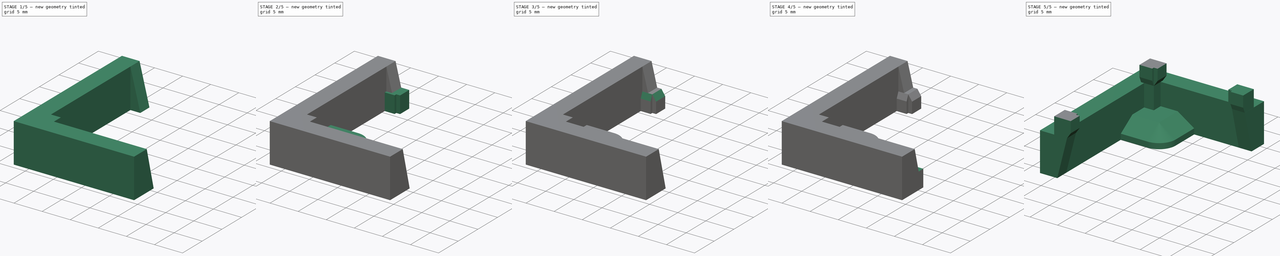
[diagram: build sequence overview — one tinted view per stage of 5, left to right]
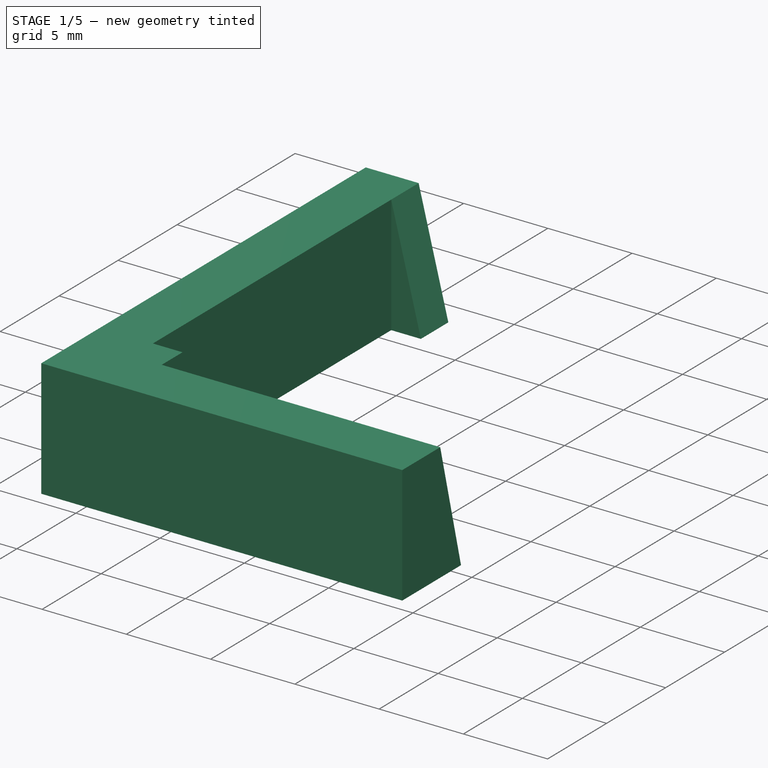
[diagram: stage 1 of 5 — iso view after this stage's code; geometry added in this stage tinted green]
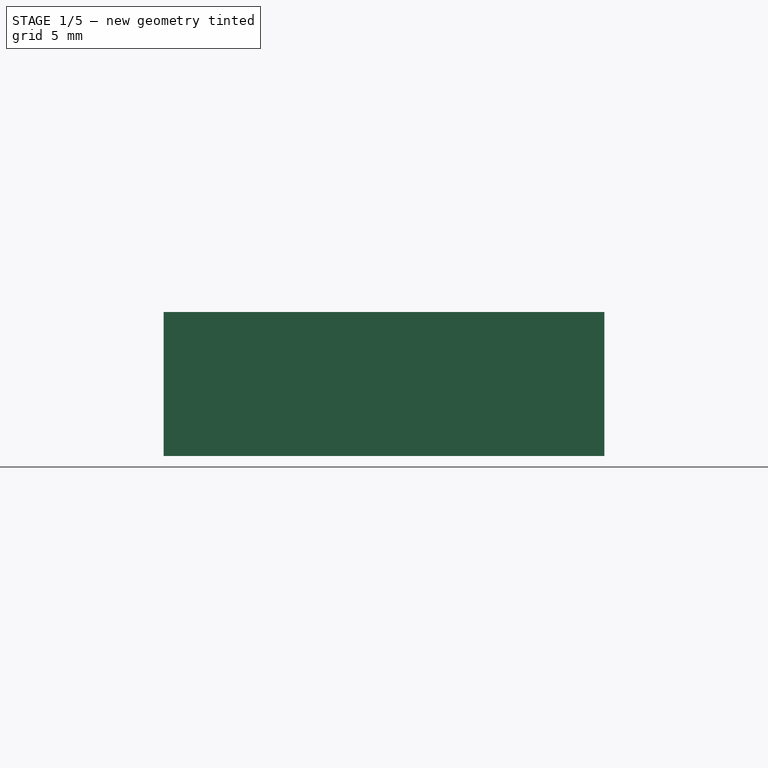
[diagram: stage 1 of 5 — front view after this stage's code; geometry added in this stage tinted green]
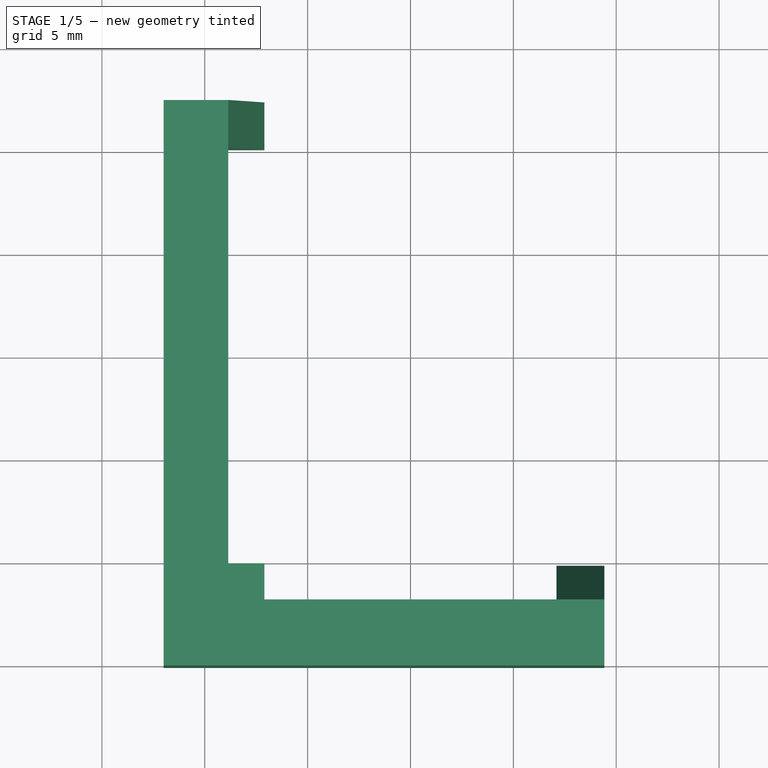
[diagram: stage 1 of 5 — top view after this stage's code; geometry added in this stage tinted green]
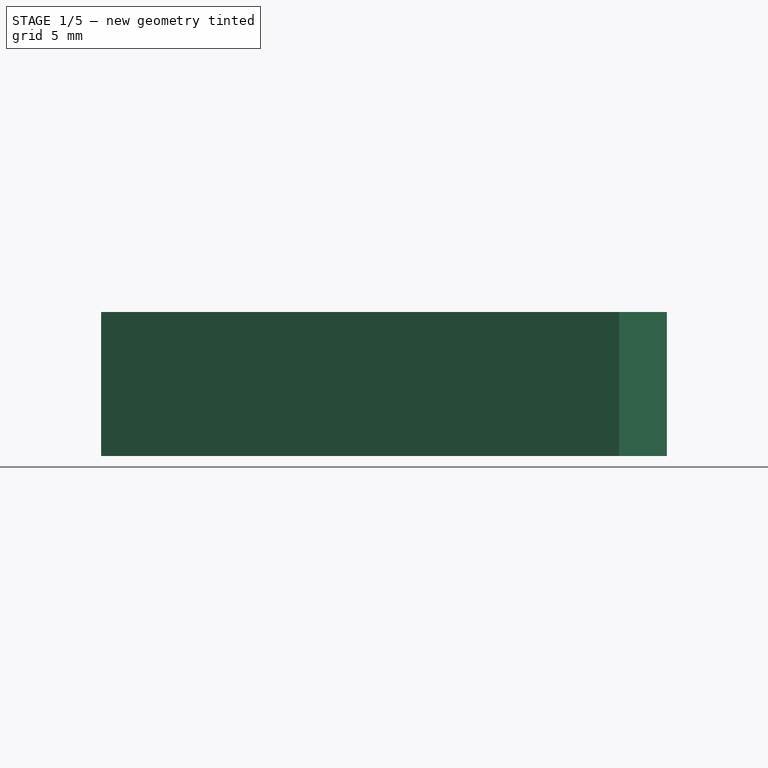
[diagram: stage 1 of 5 — right view after this stage's code; geometry added in this stage tinted green]
FCSTD DOCUMENT  (FreeCAD 1.0R39319 (Git))
Label: Alignment_Tool_v1.0
License: All rights reserved
LicenseURL: https://en.wikipedia.org/wiki/All_rights_reserved
objects: PartDesign::Chamfer×9, Sketcher::SketchObject×5, PartDesign::Pad×5, PartDesign::Body×5, Part::Feature×1, Part::MultiFuse×1
note: 59 computed .brp shape members not serialized (recipe doc carries the construction recipe); baked Part::Feature solids carry a one-line shape summary decoded from their .brp

FEATURE [Sketcher::SketchObject] Sketch003
  ArcFitTolerance = 1e-06
  AttachmentSupport = -> [XY_Plane003]
  FullyConstrained = true
  MakeInternals = false
  MapMode = 5
  sketch-geometry (12):
    g0: LineSegment StartX=-7.1 StartY=-11.86 StartZ=0 EndX=7.1 EndY=-11.86 EndZ=0
    g1: LineSegment StartX=7.1 StartY=-11.86 StartZ=0 EndX=7.1 EndY=-10.1 EndZ=0
    g2: LineSegment StartX=7.1 StartY=-10.1 StartZ=0 EndX=9.425 EndY=-10.1 EndZ=0
    g3: LineSegment StartX=9.425 StartY=-10.1 StartZ=0 EndX=9.425 EndY=-15.075 EndZ=0
    g4: LineSegment StartX=9.425 StartY=-15.075 StartZ=0 EndX=-12 EndY=-15.075 EndZ=0
    g5: LineSegment StartX=-12 StartY=-15.075 StartZ=0 EndX=-12 EndY=12.425 EndZ=0
    g6: LineSegment StartX=-12 StartY=12.425 StartZ=0 EndX=-7.1 EndY=12.425 EndZ=0
    g7: LineSegment StartX=-7.1 StartY=12.425 StartZ=0 EndX=-7.1 EndY=10.1 EndZ=0
    g8: LineSegment StartX=-7.1 StartY=10.1 StartZ=0 EndX=-8.86 EndY=10.1 EndZ=0
    g9: LineSegment StartX=-8.86 StartY=10.1 StartZ=0 EndX=-8.86 EndY=-10.1 EndZ=0
    g10: LineSegment StartX=-8.86 StartY=-10.1 StartZ=0 EndX=-7.1 EndY=-10.1 EndZ=0
    g11: LineSegment StartX=-7.1 StartY=-10.1 StartZ=0 EndX=-7.1 EndY=-11.86 EndZ=0
  constraints (36):
    c: Horizontal(g0)
    c: Coincident(g0,g1)
    c: Coincident(g1,g2)
    c: Coincident(g2,g3)
    c: Vertical(g3)
    c: Coincident(g3,g4)
    c: Coincident(g4,g5)
    c: Vertical(g5)
    c: Coincident(g5,g6)
    c: Horizontal(g6)
    c: DistanceX(g5,g-1) = 12
    c: DistanceY(g-1,g6) = 12.425
    c: DistanceY(g5,g5) = 27.5
    c: Vertical(g1)
    c: Horizontal(g2)
    c: DistanceY(g1) = -10.1
    c: DistanceX(g-1,g1) = 7.1
    c: Distance(g1,g1) = 1.76
    c: Coincident(g7,g8)
    c: Coincident(g8,g9)
    c: Vertical(g9)
    c: Coincident(g9,g10)
    c: Coincident(g10,g11)
    c: Horizontal(g8)
    c: Vertical(g7)
    c: Vertical(g11)
    c: Horizontal(g10)
    c: Horizontal(g10,g1)
    c: DistanceX(g7) = -7.1
    c: DistanceX(g8,g-1) = 8.86
    c: Coincident(g6,g7)
    c: Vertical(g7,g10)
    c: Coincident(g11,g0)
    c: Horizontal(g4)
    c: DistanceY(g-1,g7) = 10.1
    c: DistanceX(g-1,g2) = 9.425
FEATURE [PartDesign::Pad] Pad003
  Direction = (0,0,1)
  Length = 7
  Length2 = 10
  Profile = -> Sketch003
  ReferenceAxis = -> Sketch003 [N_Axis]
  Refine = true
  Suppressed = false
  Type = 0
FEATURE [PartDesign::Body] Body004  label="Thumb"
  AllowCompound = false
  Group = -> [Sketch004,Pad004,Chamfer006]
  Origin = -> Origin004
  Placement = pos=(0,0,7) rot=(0,0,1;0rad)
  Tip = -> Chamfer006
FEATURE [PartDesign::Chamfer] Chamfer007
  Angle = 45
  Base = -> Pad003 [Edge10]
  BaseFeature = -> Pad003
  ChamferType = 1
  FlipDirection = false
  Refine = true
  Size = 6.99
  Size2 = 1.76
  SupportTransform = false
  Suppressed = false
  UseAllEdges = false
FEATURE [PartDesign::Chamfer] Chamfer008
  Angle = 45
  Base = -> Chamfer007 [Edge29]
  BaseFeature = -> Chamfer007
  ChamferType = 1
  FlipDirection = false
  Refine = true
  Size = 1.76
  Size2 = 6.99
  SupportTransform = false
  Suppressed = false
  UseAllEdges = false
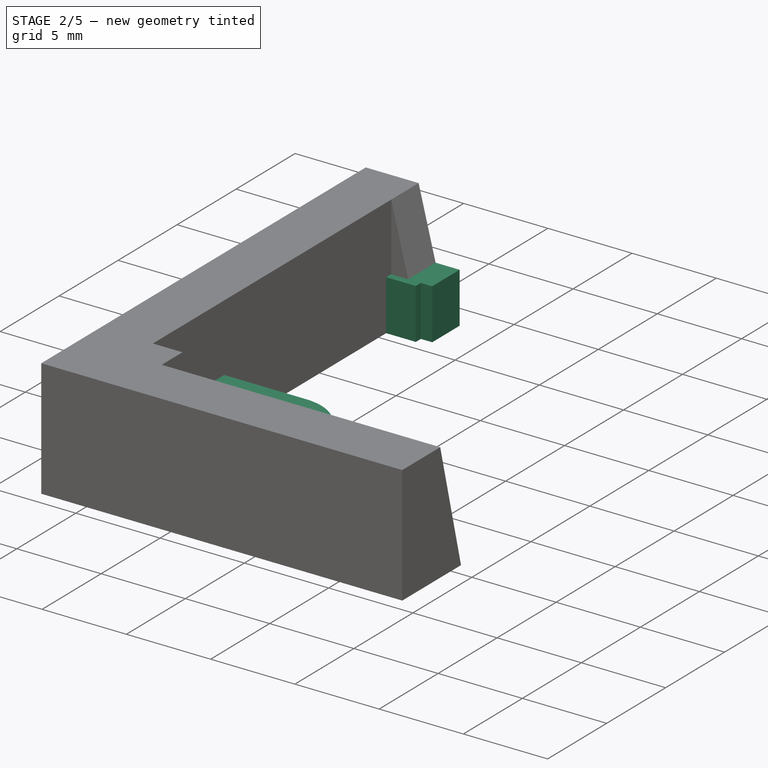
[diagram: stage 2 of 5 — iso view after this stage's code; geometry added in this stage tinted green]
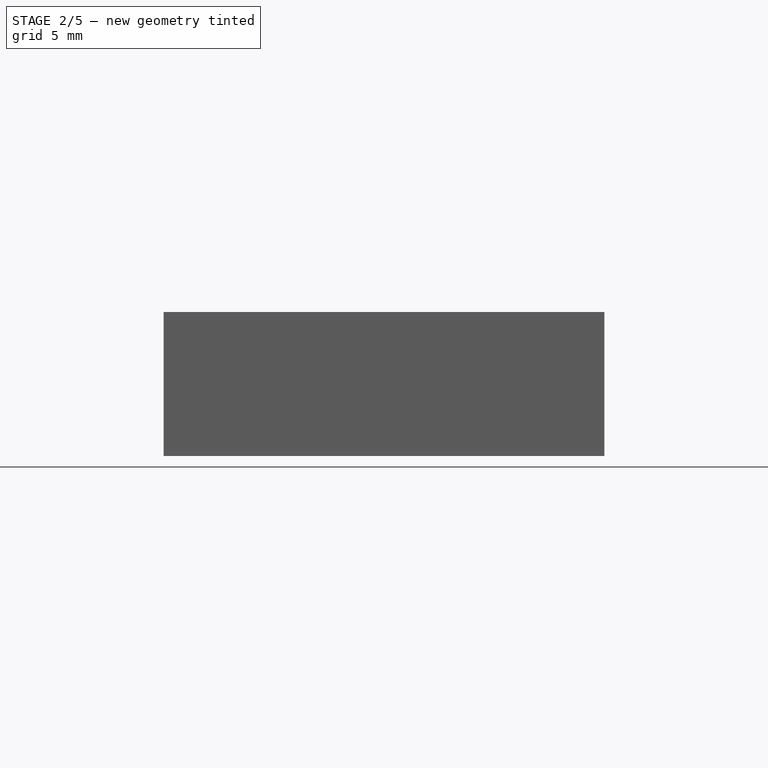
[diagram: stage 2 of 5 — front view after this stage's code; geometry added in this stage tinted green]
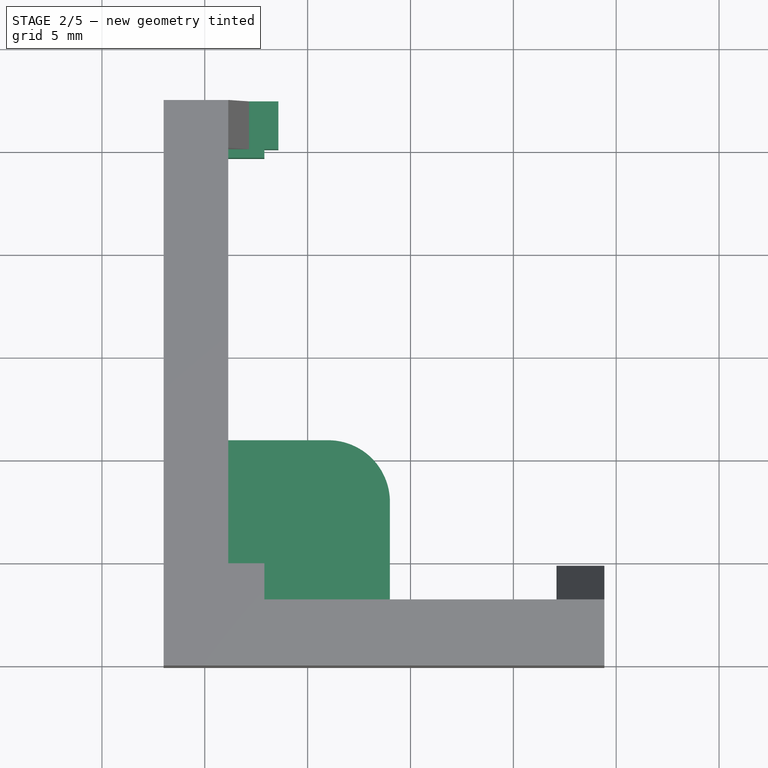
[diagram: stage 2 of 5 — top view after this stage's code; geometry added in this stage tinted green]
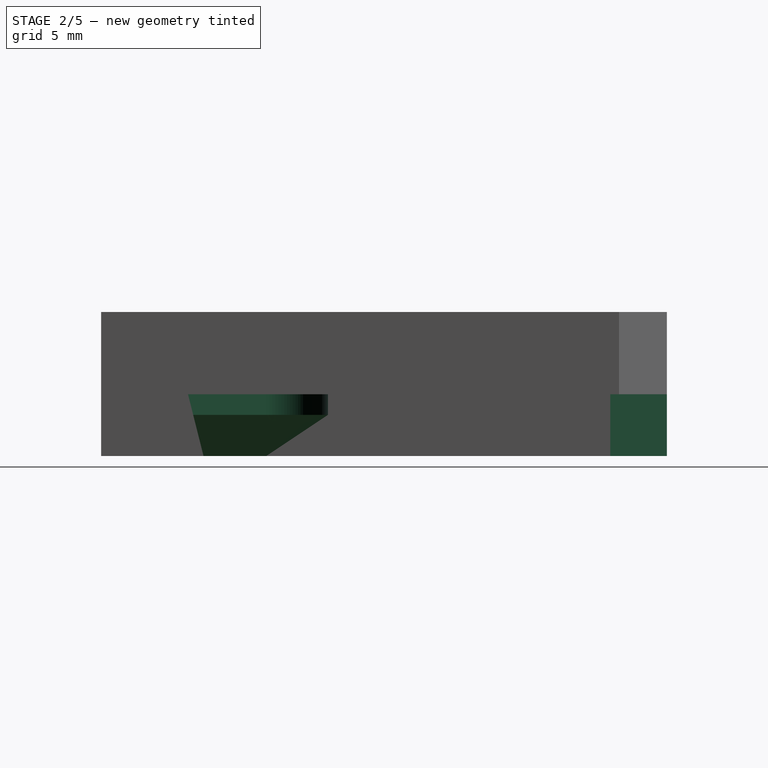
[diagram: stage 2 of 5 — right view after this stage's code; geometry added in this stage tinted green]
FEATURE [Part::Feature] Part__Feature  label="PQFP-100_14x20mm_P0.65mm - K4D263238F v1"
  Placement = pos=(0,0,-1.6) rot=(0,0,1;0rad)
  shape: bbox 17.21 x 23.21 x 1.211 mm, 1544 faces (baked)
FEATURE [Sketcher::SketchObject] Sketch
  ArcFitTolerance = 1e-06
  AttachmentSupport = -> [XY_Plane]
  FullyConstrained = true
  MakeInternals = false
  MapMode = 5
  sketch-geometry (18):
    g0: LineSegment StartX=-7.1 StartY=9.675 StartZ=0 EndX=-9.425 EndY=9.675 EndZ=0
    g1: LineSegment StartX=-9.425 StartY=9.675 StartZ=0 EndX=-9.425 EndY=12.425 EndZ=0
    g2: LineSegment StartX=-9.425 StartY=12.425 StartZ=0 EndX=-6.425 EndY=12.425 EndZ=0
    g3: LineSegment StartX=-6.425 StartY=12.425 StartZ=0 EndX=-6.425 EndY=10.1 EndZ=0
    g4: LineSegment StartX=-6.425 StartY=10.1 StartZ=0 EndX=-7.1 EndY=10.1 EndZ=0
    g5: LineSegment StartX=-7.1 StartY=10.1 StartZ=0 EndX=-7.1 EndY=9.675 EndZ=0
    g6: LineSegment StartX=-7.1 StartY=-9.675 StartZ=0 EndX=-7.1 EndY=-10.1 EndZ=0
    g7: LineSegment StartX=-7.1 StartY=-10.1 StartZ=0 EndX=-6.425 EndY=-10.1 EndZ=0
    g8: LineSegment StartX=-6.425 StartY=-10.1 StartZ=0 EndX=-6.425 EndY=-12.425 EndZ=0
    g9: LineSegment StartX=-6.425 StartY=-12.425 StartZ=0 EndX=-9.425 EndY=-12.425 EndZ=0
    g10: LineSegment StartX=-9.425 StartY=-12.425 StartZ=0 EndX=-9.425 EndY=-9.675 EndZ=0
    g11: LineSegment StartX=-9.425 StartY=-9.675 StartZ=0 EndX=-7.1 EndY=-9.675 EndZ=0
    g12: LineSegment StartX=7.1 StartY=-9.675 StartZ=0 EndX=9.425 EndY=-9.675 EndZ=0
    g13: LineSegment StartX=9.425 StartY=-9.675 StartZ=0 EndX=9.425 EndY=-12.425 EndZ=0
    g14: LineSegment StartX=9.425 StartY=-12.425 StartZ=0 EndX=6.425 EndY=-12.425 EndZ=0
    g15: LineSegment StartX=6.425 StartY=-12.425 StartZ=0 EndX=6.425 EndY=-10.1 EndZ=0
    g16: LineSegment StartX=6.425 StartY=-10.1 StartZ=0 EndX=7.1 EndY=-10.1 EndZ=0
    g17: LineSegment StartX=7.1 StartY=-10.1 StartZ=0 EndX=7.1 EndY=-9.675 EndZ=0
  constraints (52):
    c: Horizontal(g0)
    c: Coincident(g0,g1)
    c: Vertical(g1)
    c: Coincident(g1,g2)
    c: Horizontal(g2)
    c: Coincident(g2,g3)
    c: Vertical(g3)
    c: Coincident(g3,g4)
    c: Horizontal(g4)
    c: Coincident(g4,g5)
    c: Coincident(g5,g0)
    c: Vertical(g5)
    c: Vertical(g6)
    c: Coincident(g6,g7)
    c: Horizontal(g7)
    c: Coincident(g7,g8)
    c: Vertical(g8)
    c: Coincident(g8,g9)
    c: Horizontal(g9)
    c: Coincident(g9,g10)
    c: Vertical(g10)
    c: Coincident(g10,g11)
    c: Coincident(g11,g6)
    c: Horizontal(g11)
    c: Horizontal(g12)
    c: Coincident(g12,g13)
    c: Vertical(g13)
    c: Coincident(g13,g14)
    c: Horizontal(g14)
    c: Coincident(g14,g15)
    c: Vertical(g15)
    c: Coincident(g15,g16)
    c: Horizontal(g16)
    c: Coincident(g16,g17)
    c: Coincident(g17,g12)
    c: Vertical(g17)
    c: Vertical(g10,g0)
    c: Vertical(g0,g6)
    c: Horizontal(g14,g8)
    c: Horizontal(g6,g12)
    c: DistanceX(g0,g-1) = 7.1
    c: DistanceY(g-1,g3) = 10.1
    c: Equal(g1,g10)
    c: Equal(g2,g14)
    c: Equal(g5,g6)
    c: Equal(g4,g16)
    c: DistanceY(g0,g3) = 0.425
    c: DistanceX(g0,g3) = 0.675
    c: DistanceY(g0,g1) = 2.75
    c: DistanceX(g1,g2) = 3
    c: Symmetric(g3,g7,g-1)
    c: Symmetric(g16,g6,g-2)
FEATURE [PartDesign::Pad] Pad
  Direction = (0,0,1)
  Length = 3
  Length2 = 10
  Profile = -> Sketch
  ReferenceAxis = -> Sketch [N_Axis]
  Refine = true
  Suppressed = false
  Type = 0
FEATURE [Sketcher::SketchObject] Sketch004
  ArcFitTolerance = 1e-06
  AttachmentSupport = -> [XY_Plane004]
  FullyConstrained = true
  MakeInternals = false
  MapMode = 5
  sketch-geometry (10):
    g0: LineSegment StartX=-12 StartY=-7.05 StartZ=0 EndX=-12 EndY=-12.05 EndZ=0
    g1: LineSegment StartX=-9 StartY=-15.05 StartZ=0 EndX=-4 EndY=-15.05 EndZ=0
    g2: LineSegment StartX=-1 StartY=-12.05 StartZ=0 EndX=-1 EndY=-7.05 EndZ=0
    g3: LineSegment StartX=-4 StartY=-4.05 StartZ=0 EndX=-9 EndY=-4.05 EndZ=0
    g4: ArcOfCircle CenterX=-9 CenterY=-7.05 CenterZ=0 NormalX=0 NormalY=0 NormalZ=1 AngleXU=0 Radius=3 StartAngle=1.5708 EndAngle=3.14159
    g5: ArcOfCircle CenterX=-9 CenterY=-12.05 CenterZ=0 NormalX=0 NormalY=0 NormalZ=1 AngleXU=0 Radius=3 StartAngle=3.14159 EndAngle=4.71239
    g6: ArcOfCircle CenterX=-4 CenterY=-12.05 CenterZ=0 NormalX=0 NormalY=0 NormalZ=1 AngleXU=0 Radius=3 StartAngle=4.71239 EndAngle=6.28319
    g7: ArcOfCircle CenterX=-4 CenterY=-7.05 CenterZ=0 NormalX=0 NormalY=0 NormalZ=1 AngleXU=0 Radius=3 StartAngle=1e-16 EndAngle=1.5708
    g8: GeomPoint [constr] X=-12 Y=-4.05 Z=0
    g9: GeomPoint [constr] X=-1 Y=-15.05 Z=0
  constraints (24):
    c: Tangent(g0,g4) = -1.5708
    c: Tangent(g0,g5) = -1.5708
    c: Tangent(g1,g5) = -1.5708
    c: Tangent(g1,g6) = -1.5708
    c: Tangent(g2,g6) = -1.5708
    c: Tangent(g2,g7) = -1.5708
    c: Tangent(g3,g7) = -1.5708
    c: Tangent(g3,g4) = -1.5708
    c: Vertical(g0)
    c: Vertical(g2)
    c: Horizontal(g1)
    c: Horizontal(g3)
    c: Equal(g4,g5)
    c: Equal(g5,g6)
    c: Equal(g6,g7)
    c: PointOnObject(g8,g0)
    c: PointOnObject(g8,g3)
    c: PointOnObject(g9,g1)
    c: PointOnObject(g9,g2)
    c: Radius(g5) = 3
    c: Equal(g0,g1)
    c: DistanceX(g1,g1) = 5
    c: DistanceX(g0,g-1) = 12
    c: DistanceY(g1) = -15.05
FEATURE [PartDesign::Pad] Pad004
  Direction = (0,0,1)
  Length = 3
  Length2 = 10
  Profile = -> Sketch004
  ReferenceAxis = -> Sketch004 [N_Axis]
  Refine = true
  Suppressed = false
  Type = 0
FEATURE [PartDesign::Body] Body  label="ULH"
  AllowCompound = false
  Group = -> [Sketch,Pad,Chamfer004,Chamfer005]
  Origin = -> Origin
  Tip = -> Chamfer005
FEATURE [PartDesign::Chamfer] Chamfer006
  Angle = 45
  Base = -> Pad004 [Edge21,Edge18,Edge15]
  BaseFeature = -> Pad004
  ChamferType = 1
  FlipDirection = false
  Refine = true
  Size = 2
  Size2 = 3
  SupportTransform = false
  Suppressed = false
  UseAllEdges = false
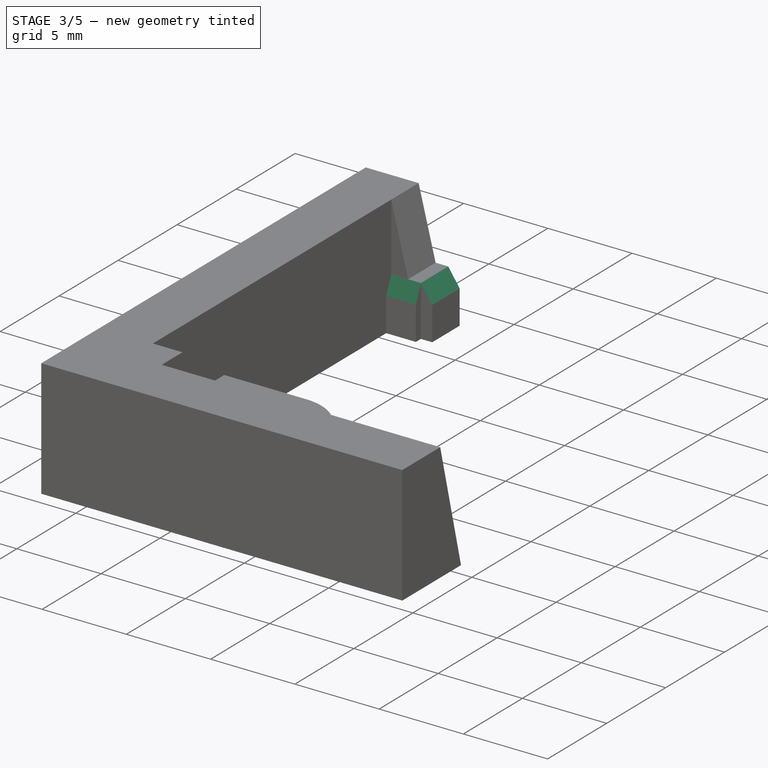
[diagram: stage 3 of 5 — iso view after this stage's code; geometry added in this stage tinted green]
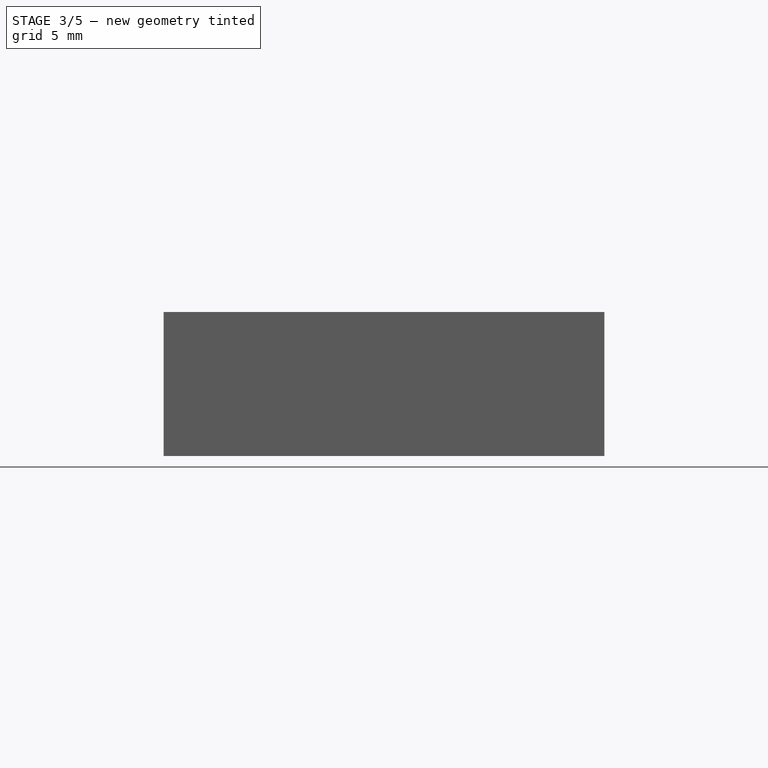
[diagram: stage 3 of 5 — front view after this stage's code; geometry added in this stage tinted green]
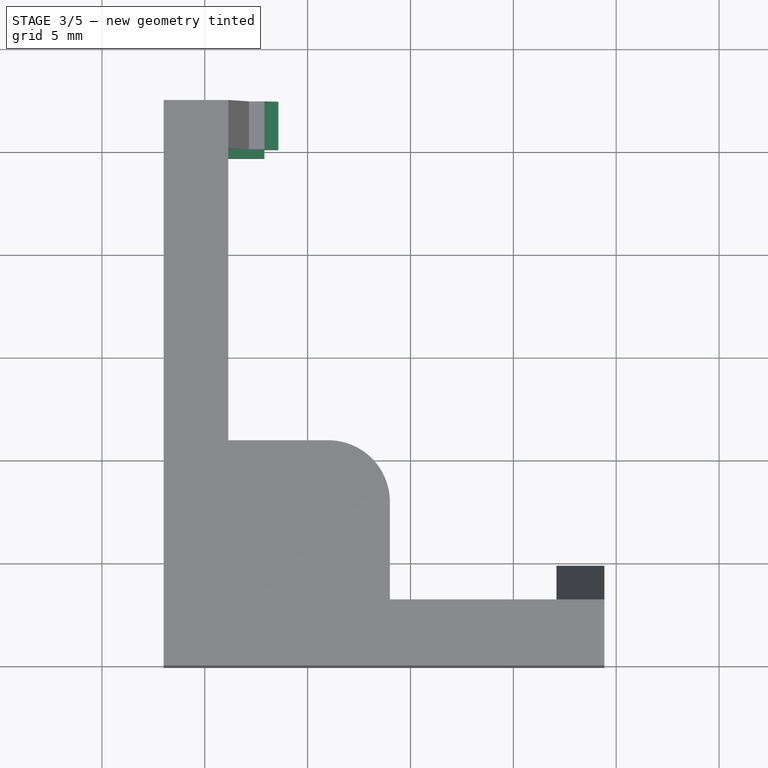
[diagram: stage 3 of 5 — top view after this stage's code; geometry added in this stage tinted green]
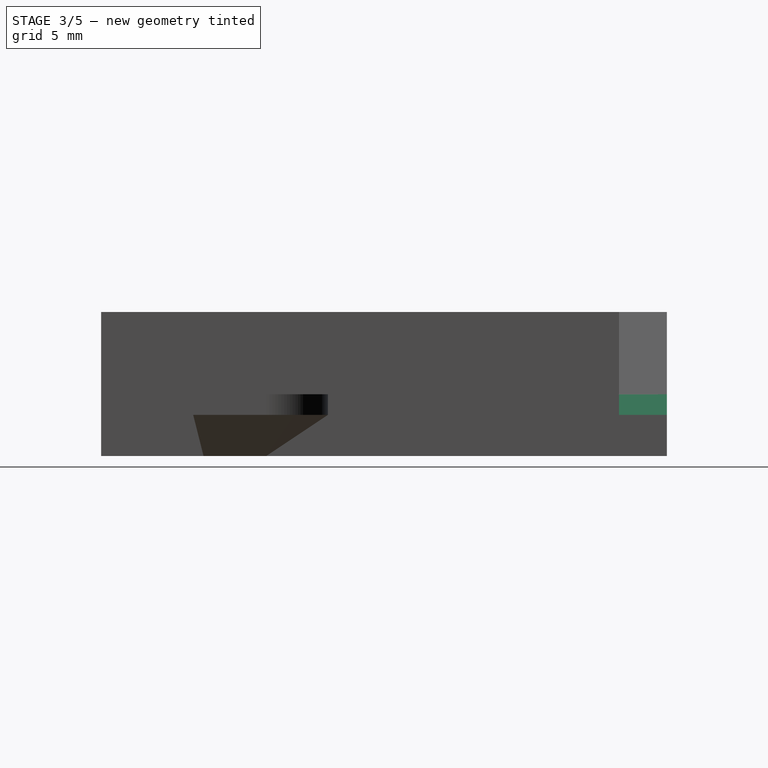
[diagram: stage 3 of 5 — right view after this stage's code; geometry added in this stage tinted green]
FEATURE [Sketcher::SketchObject] Sketch001
  ArcFitTolerance = 1e-06
  AttachmentSupport = -> [XY_Plane001]
  FullyConstrained = true
  MakeInternals = false
  MapMode = 5
  sketch-geometry (6):
    g0: LineSegment StartX=-7.1 StartY=-9.68 StartZ=0 EndX=-7.1 EndY=-10.1 EndZ=0
    g1: LineSegment StartX=-7.1 StartY=-10.1 StartZ=0 EndX=-6.42 EndY=-10.1 EndZ=0
    g2: LineSegment StartX=-6.42 StartY=-10.1 StartZ=0 EndX=-6.42 EndY=-12.43 EndZ=0
    g3: LineSegment StartX=-6.42 StartY=-12.43 StartZ=0 EndX=-9.42 EndY=-12.43 EndZ=0
    g4: LineSegment StartX=-9.42 StartY=-12.43 StartZ=0 EndX=-9.42 EndY=-9.68 EndZ=0
    g5: LineSegment StartX=-9.42 StartY=-9.68 StartZ=0 EndX=-7.1 EndY=-9.68 EndZ=0
  constraints (18):
    c: Vertical(g0)
    c: Coincident(g0,g1)
    c: Horizontal(g1)
    c: Coincident(g1,g2)
    c: Vertical(g2)
    c: Coincident(g2,g3)
    c: Horizontal(g3)
    c: Coincident(g3,g4)
    c: Vertical(g4)
    c: Coincident(g4,g5)
    c: Coincident(g5,g0)
    c: Horizontal(g5)
    c: DistanceX(g0) = -7.1
    c: DistanceY(g1,g-1) = 10.1
    c: DistanceX(g3,g3) = 3
    c: DistanceY(g4,g4) = 2.75
    c: Distance(g0,g0) = 0.42
    c: Distance(g1,g1) = 0.68
FEATURE [PartDesign::Pad] Pad001
  Direction = (0,0,1)
  Length = 3
  Length2 = 10
  Profile = -> Sketch001
  ReferenceAxis = -> Sketch001 [N_Axis]
  Refine = true
  Suppressed = false
  Type = 0
FEATURE [PartDesign::Body] Body001  label="LLH"
  AllowCompound = false
  Group = -> [Sketch001,Pad001,Chamfer002,Chamfer003]
  Origin = -> Origin001
  Tip = -> Chamfer003
FEATURE [PartDesign::Chamfer] Chamfer004
  Angle = 45
  Base = -> Pad [Edge4]
  BaseFeature = -> Pad
  ChamferType = 1
  FlipDirection = false
  Refine = true
  Size = 1
  Size2 = 0.42
  SupportTransform = false
  Suppressed = false
  UseAllEdges = false
FEATURE [PartDesign::Chamfer] Chamfer005
  Angle = 45
  Base = -> Chamfer004 [Edge18]
  BaseFeature = -> Chamfer004
  ChamferType = 1
  FlipDirection = false
  Refine = true
  Size = 0.68
  Size2 = 1
  SupportTransform = false
  Suppressed = false
  UseAllEdges = false
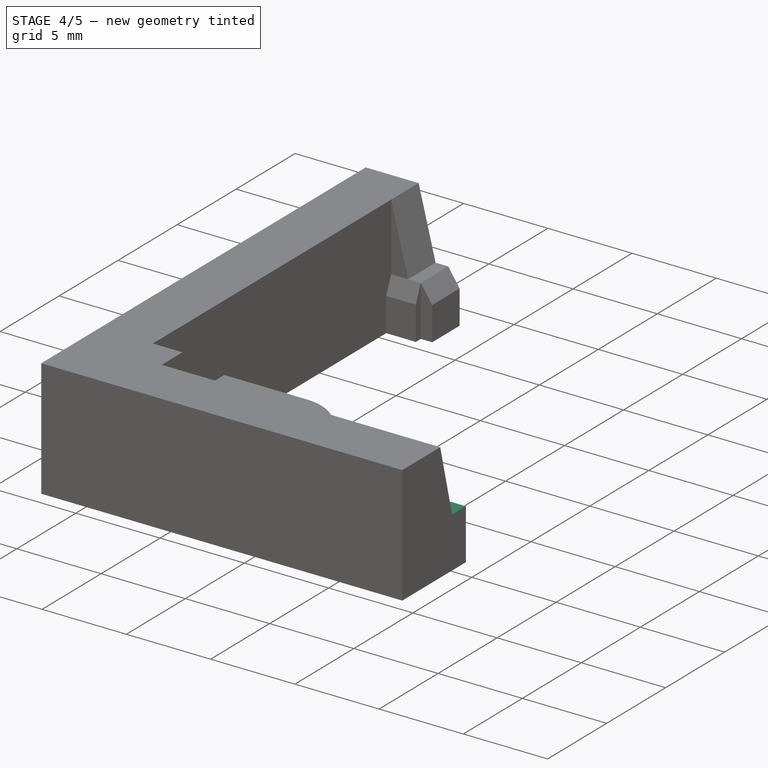
[diagram: stage 4 of 5 — iso view after this stage's code; geometry added in this stage tinted green]
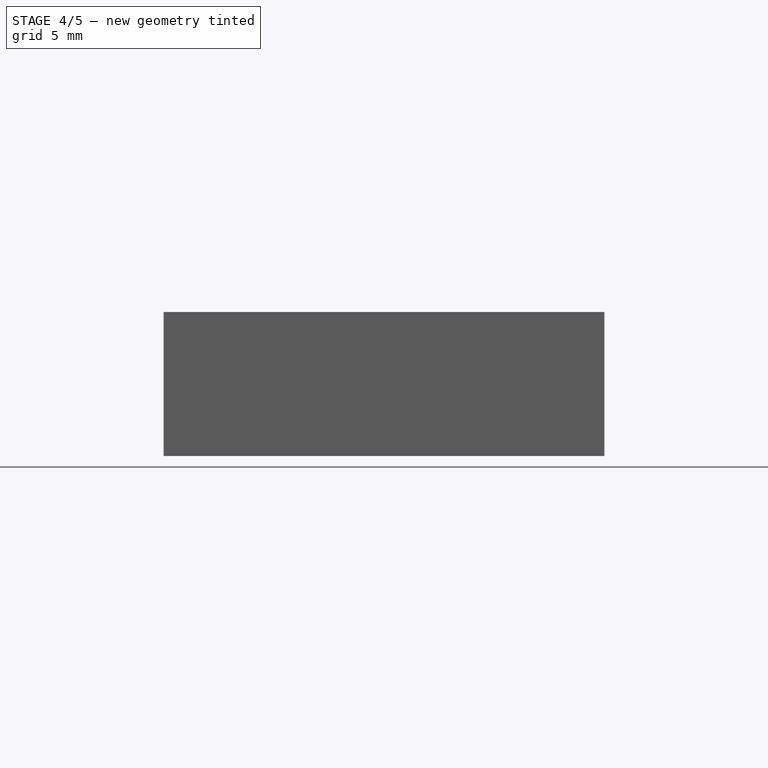
[diagram: stage 4 of 5 — front view after this stage's code; geometry added in this stage tinted green]
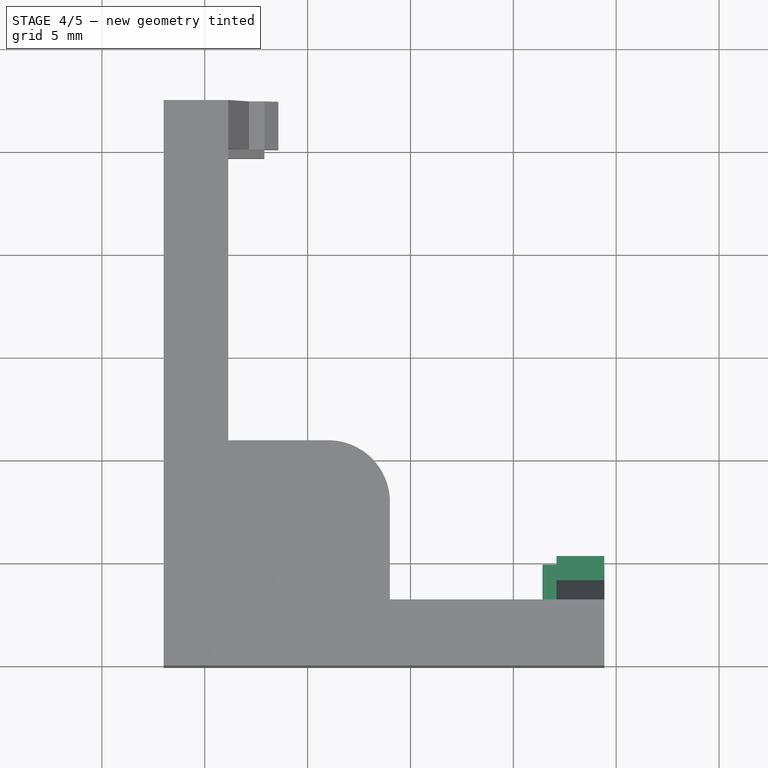
[diagram: stage 4 of 5 — top view after this stage's code; geometry added in this stage tinted green]
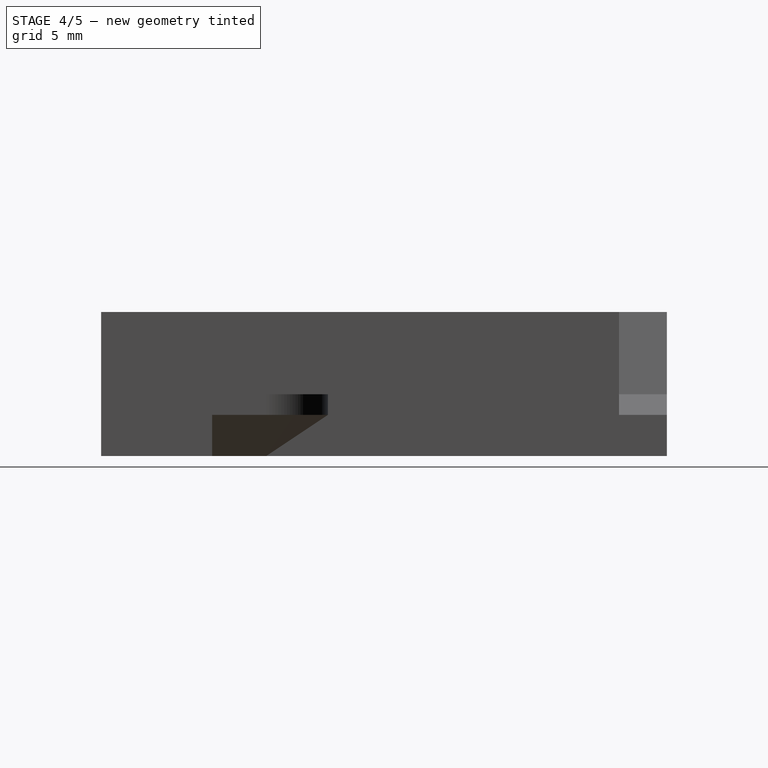
[diagram: stage 4 of 5 — right view after this stage's code; geometry added in this stage tinted green]
FEATURE [Sketcher::SketchObject] Sketch002
  ArcFitTolerance = 1e-06
  AttachmentSupport = -> [XY_Plane002]
  FullyConstrained = true
  MakeInternals = false
  MapMode = 5
  sketch-geometry (6):
    g0: LineSegment StartX=7.1 StartY=-9.68 StartZ=0 EndX=9.42 EndY=-9.68 EndZ=0
    g1: LineSegment StartX=9.42 StartY=-9.68 StartZ=0 EndX=9.42 EndY=-12.43 EndZ=0
    g2: LineSegment StartX=9.42 StartY=-12.43 StartZ=0 EndX=6.42 EndY=-12.43 EndZ=0
    g3: LineSegment StartX=6.42 StartY=-12.43 StartZ=0 EndX=6.42 EndY=-10.1 EndZ=0
    g4: LineSegment StartX=6.42 StartY=-10.1 StartZ=0 EndX=7.1 EndY=-10.1 EndZ=0
    g5: LineSegment StartX=7.1 StartY=-10.1 StartZ=0 EndX=7.1 EndY=-9.68 EndZ=0
  constraints (18):
    c: Horizontal(g0)
    c: Coincident(g0,g1)
    c: Vertical(g1)
    c: Coincident(g1,g2)
    c: Horizontal(g2)
    c: Coincident(g2,g3)
    c: Vertical(g3)
    c: Coincident(g3,g4)
    c: Horizontal(g4)
    c: Coincident(g4,g5)
    c: Coincident(g5,g0)
    c: Vertical(g5)
    c: DistanceX(g-1,g0) = 7.1
    c: DistanceY(g3,g-1) = 10.1
    c: DistanceY(g1,g1) = 2.75
    c: DistanceX(g2,g2) = 3
    c: Distance(g5,g5) = 0.42
    c: Distance(g4,g4) = 0.68
FEATURE [PartDesign::Pad] Pad002
  Direction = (0,0,1)
  Length = 3
  Length2 = 10
  Profile = -> Sketch002
  ReferenceAxis = -> Sketch002 [N_Axis]
  Refine = true
  Suppressed = false
  Type = 0
FEATURE [PartDesign::Body] Body002  label="LRH"
  AllowCompound = false
  Group = -> [Sketch002,Pad002,Chamfer,Chamfer001]
  Origin = -> Origin002
  Tip = -> Chamfer001
FEATURE [PartDesign::Chamfer] Chamfer002
  Angle = 45
  Base = -> Pad001 [Edge10]
  BaseFeature = -> Pad001
  ChamferType = 1
  FlipDirection = false
  Refine = true
  Size = 1
  Size2 = 0.68
  SupportTransform = false
  Suppressed = false
  UseAllEdges = false
FEATURE [PartDesign::Chamfer] Chamfer003
  Angle = 45
  Base = -> Chamfer002 [Edge19]
  BaseFeature = -> Chamfer002
  ChamferType = 1
  FlipDirection = false
  Refine = true
  Size = 0.42
  Size2 = 1
  SupportTransform = false
  Suppressed = false
  UseAllEdges = false
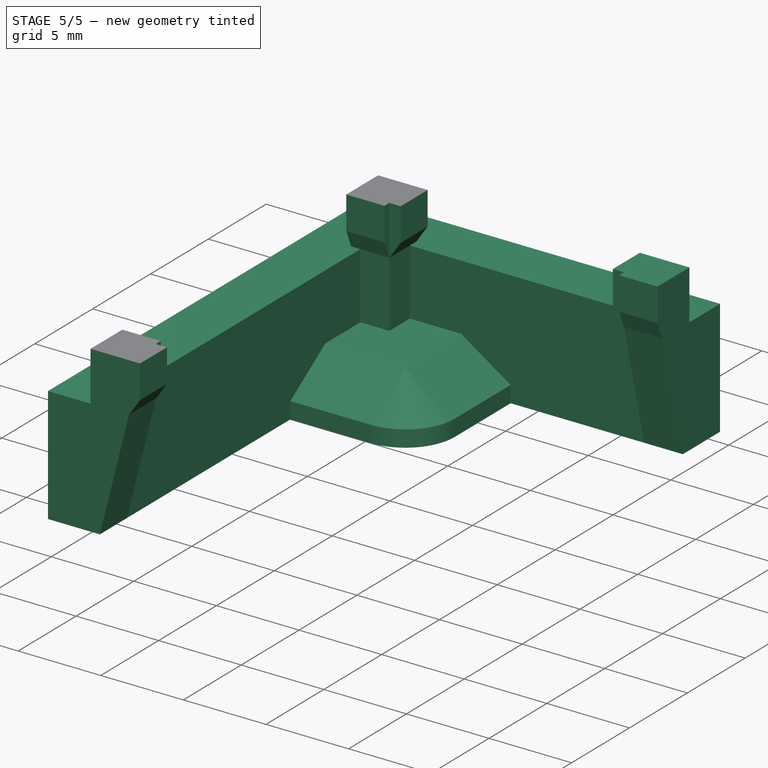
[diagram: stage 5 of 5 — iso view after this stage's code; geometry added in this stage tinted green]
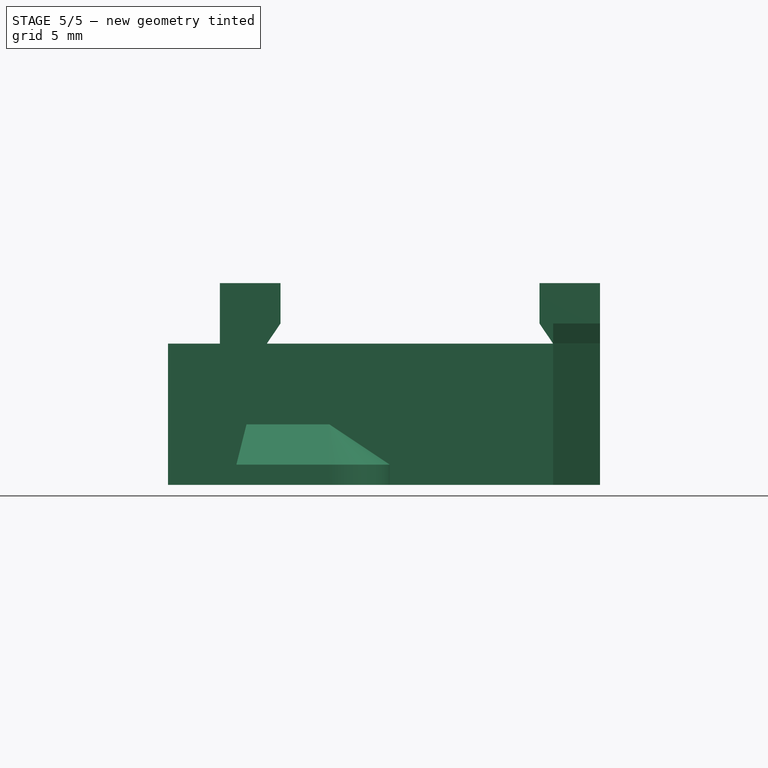
[diagram: stage 5 of 5 — front view after this stage's code; geometry added in this stage tinted green]
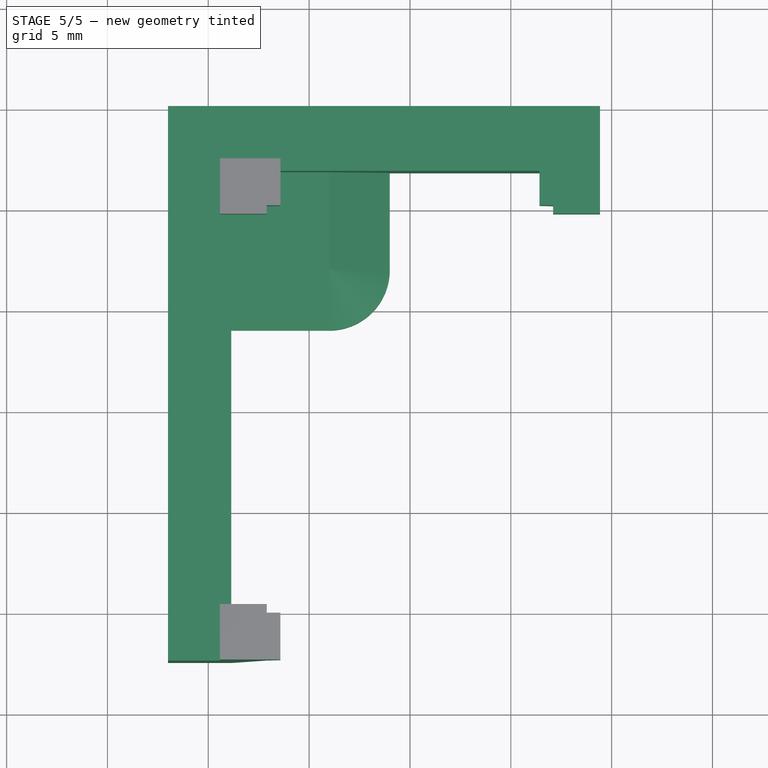
[diagram: stage 5 of 5 — top view after this stage's code; geometry added in this stage tinted green]
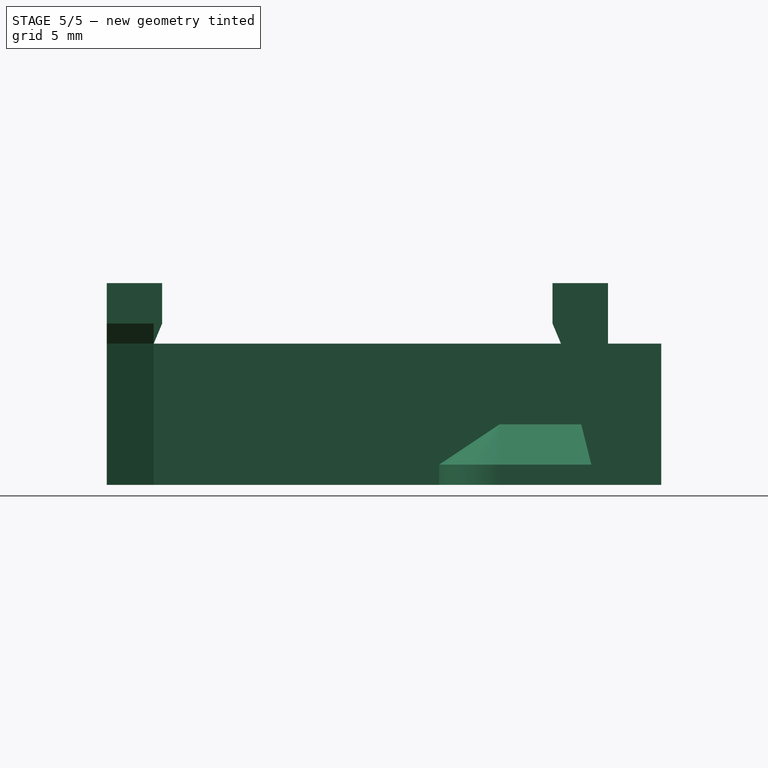
[diagram: stage 5 of 5 — right view after this stage's code; geometry added in this stage tinted green]
FEATURE [PartDesign::Chamfer] Chamfer
  Angle = 45
  Base = -> Pad002 [Edge4]
  BaseFeature = -> Pad002
  ChamferType = 1
  FlipDirection = false
  Refine = true
  Size = 1
  Size2 = 0.42
  SupportTransform = false
  Suppressed = false
  UseAllEdges = false
FEATURE [PartDesign::Chamfer] Chamfer001
  Angle = 45
  Base = -> Chamfer [Edge19]
  BaseFeature = -> Chamfer
  ChamferType = 1
  FlipDirection = false
  Refine = true
  Size = 0.68
  Size2 = 1
  SupportTransform = false
  Suppressed = false
  UseAllEdges = false
FEATURE [PartDesign::Body] Body003  label="Top"
  AllowCompound = false
  Group = -> [Sketch003,Pad003,Chamfer007,Chamfer008]
  Origin = -> Origin003
  Placement = pos=(0,0,3) rot=(0,0,1;0rad)
  Tip = -> Chamfer008
FEATURE [Part::MultiFuse] Fusion
  Placement = pos=(0,0,0) rot=(1,0,0;3.14159rad)
  Refine = true
  Shapes = -> [Body,Body001,Body002,Body003,Body004]
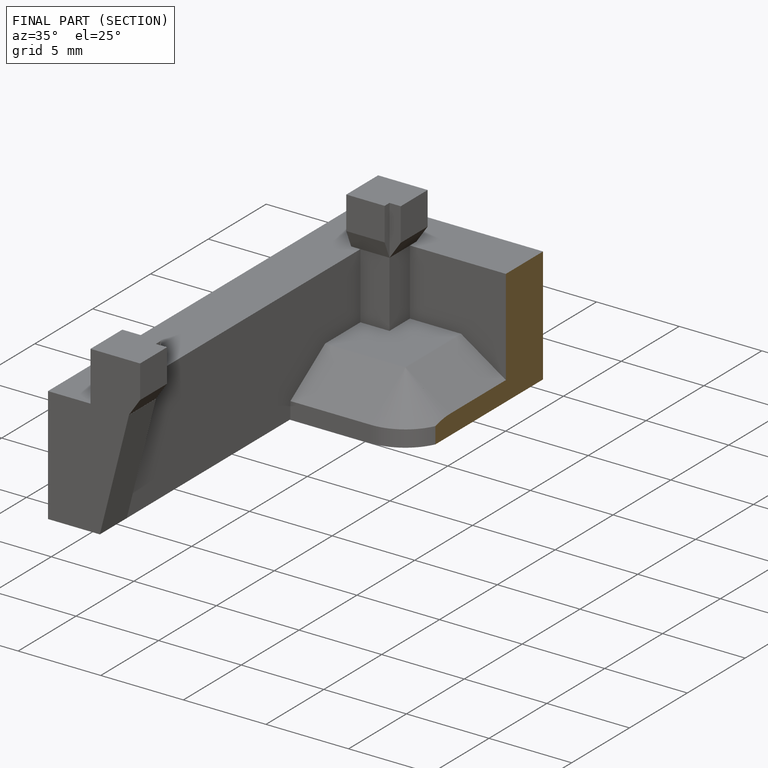
[diagram: finished part — half-section view (interior)]
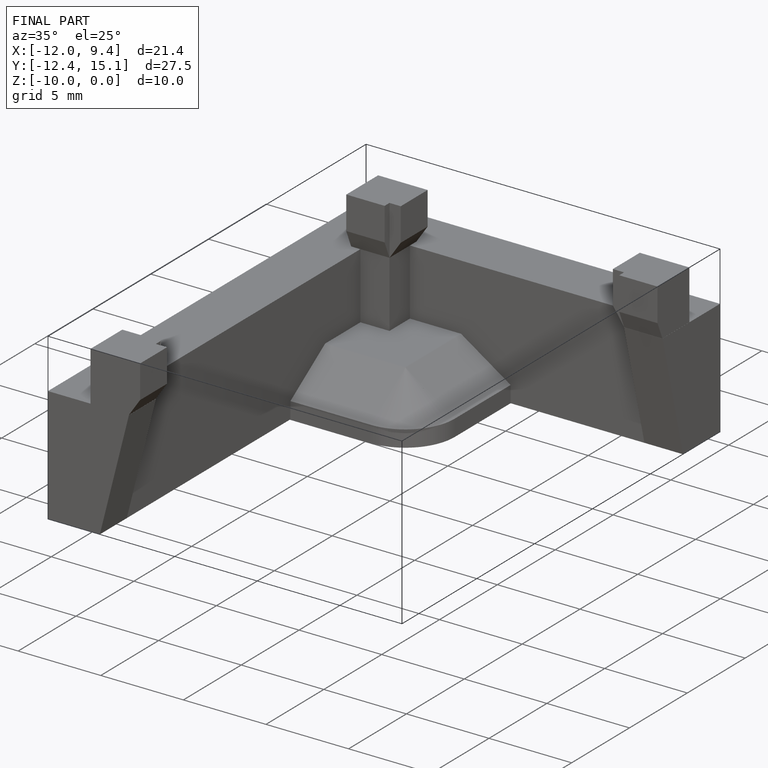
[diagram: finished part — iso view with bounding-box wireframe]
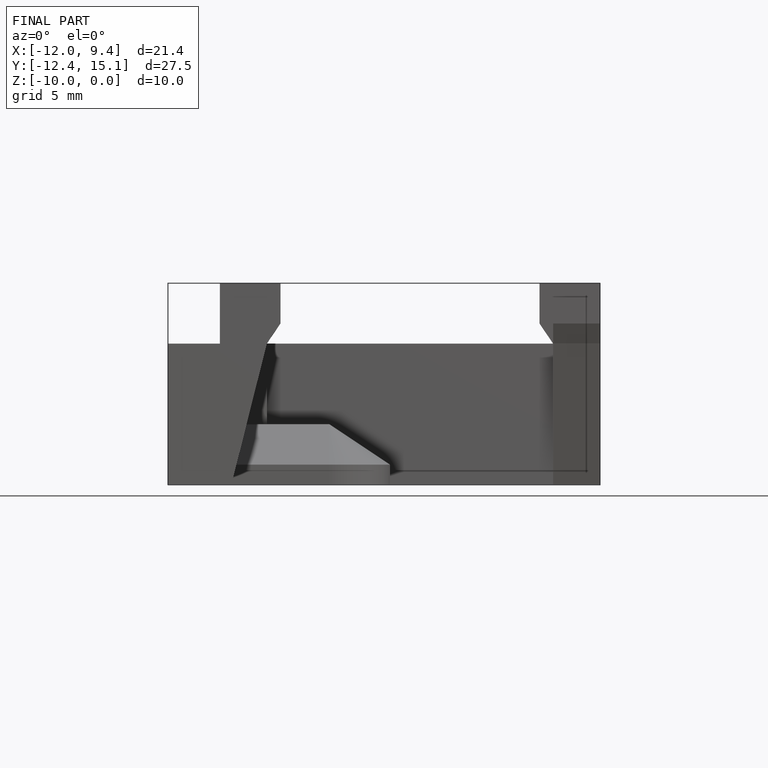
[diagram: finished part — front view with bounding-box wireframe]
